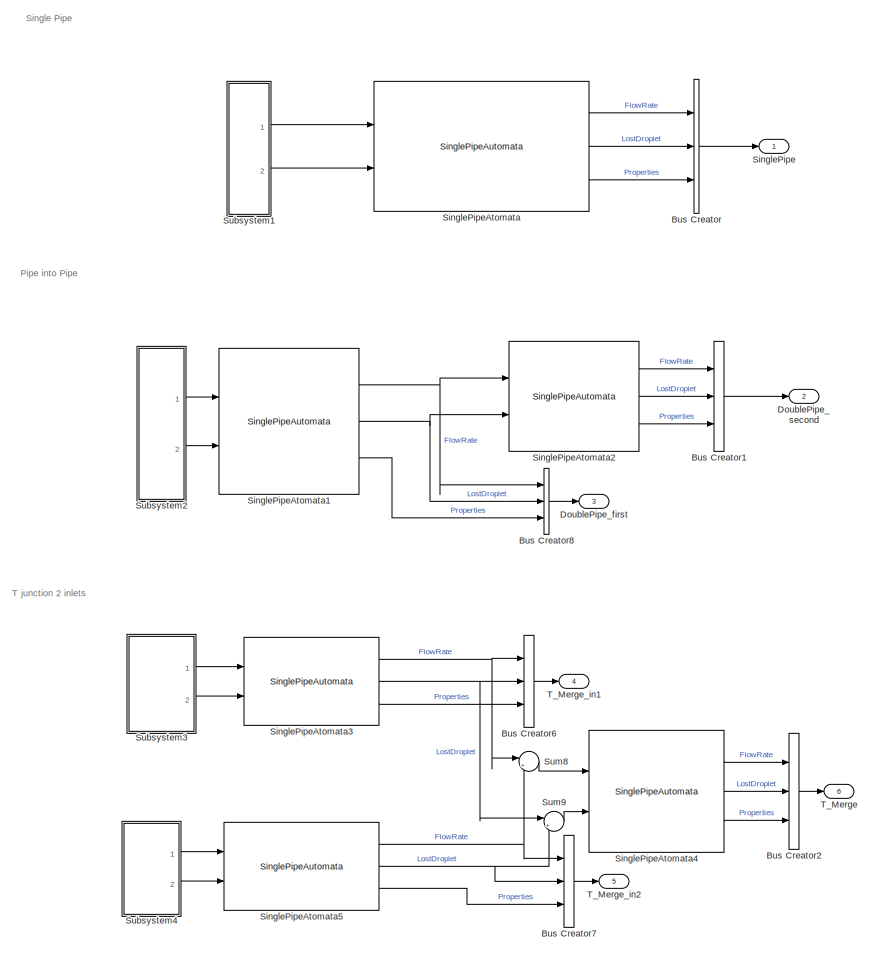
[diagram: root canvas - part 1/3, top left region]
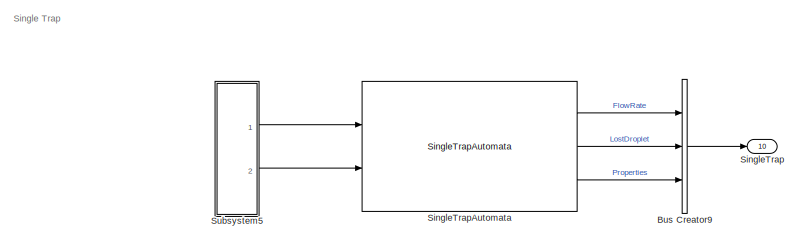
[diagram: root canvas - part 2/3, top right region]
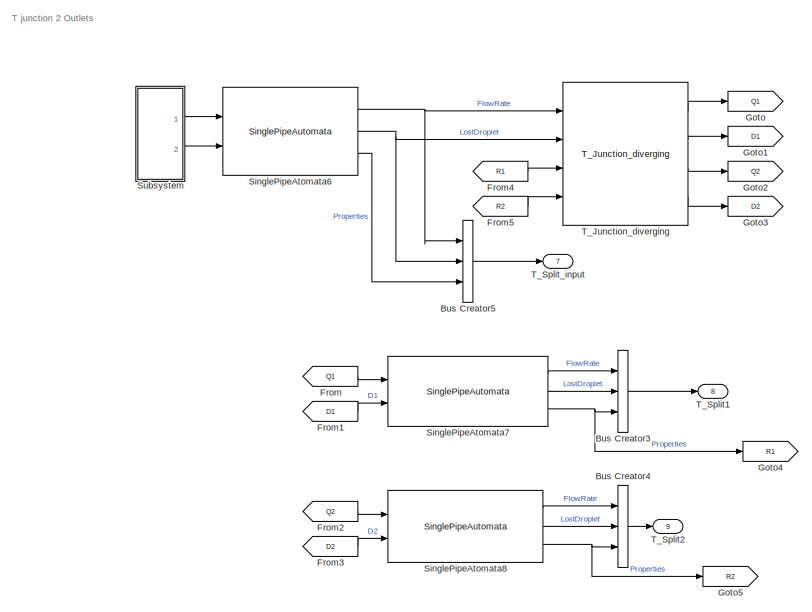
[diagram: root canvas - part 3/3, bottom left region]
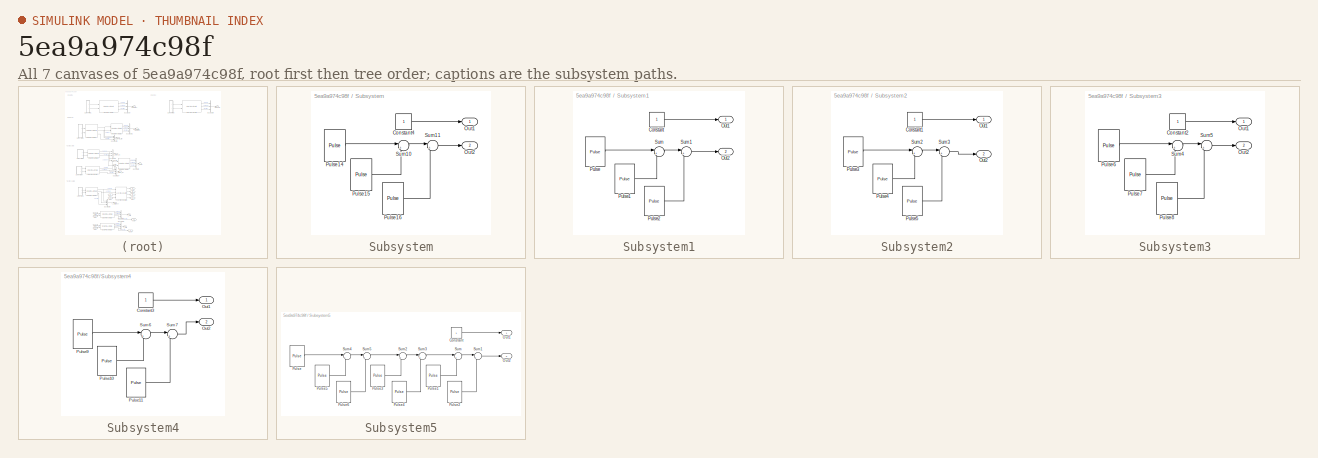
[diagram: thumbnail index - all 7 canvases of the model, root first then tree order]
MODEL slx_5ea9a974c98f
KIND model
CONFIG AbsTol = auto
CONFIG EnableMultiTasking = off
CONFIG FixedStep = 0.01
CONFIG MaxStep = auto
CONFIG MinStep = auto
CONFIG RelTol = 1e-3
CONFIG SampleTimeConstraint = Unconstrained
CONFIG Solver = FixedStepAuto
CONFIG SolverName = FixedStepAuto
CONFIG StartTime = 0.0
CONFIG StopTime = 200
BLOCK [BusCreator] Bus Creator
  DisplayOption = bar
  InheritFromInputs = on
  Inputs = 3
  Ports = [3, 1]
BLOCK [BusCreator] Bus Creator1
  DisplayOption = bar
  InheritFromInputs = on
  Inputs = 3
  Ports = [3, 1]
BLOCK [BusCreator] Bus Creator2
  DisplayOption = bar
  InheritFromInputs = on
  Inputs = 3
  Ports = [3, 1]
BLOCK [BusCreator] Bus Creator3
  DisplayOption = bar
  InheritFromInputs = on
  Inputs = 3
  Ports = [3, 1]
BLOCK [BusCreator] Bus Creator4
  DisplayOption = bar
  InheritFromInputs = on
  Inputs = 3
  Ports = [3, 1]
BLOCK [BusCreator] Bus Creator5
  DisplayOption = bar
  InheritFromInputs = on
  Inputs = 3
  Ports = [3, 1]
BLOCK [BusCreator] Bus Creator6
  DisplayOption = bar
  InheritFromInputs = on
  Inputs = 3
  Ports = [3, 1]
BLOCK [BusCreator] Bus Creator7
  DisplayOption = bar
  InheritFromInputs = on
  Inputs = 3
  Ports = [3, 1]
BLOCK [BusCreator] Bus Creator8
  DisplayOption = bar
  InheritFromInputs = on
  Inputs = 3
  Ports = [3, 1]
BLOCK [BusCreator] Bus Creator9
  DisplayOption = bar
  InheritFromInputs = on
  Inputs = 3
  Ports = [3, 1]
BLOCK [Outport] DoublePipe_first
  IconDisplay = Port number
  Port = 3
BLOCK [Outport] DoublePipe_second
  IconDisplay = Port number
  Port = 2
BLOCK [From] From
  GotoTag = Q1
BLOCK [From] From1
  GotoTag = D1
BLOCK [From] From2
  GotoTag = Q2
BLOCK [From] From3
  GotoTag = D2
BLOCK [From] From4
  GotoTag = R1
BLOCK [From] From5
  GotoTag = R2
BLOCK [Goto] Goto
  GotoTag = Q1
BLOCK [Goto] Goto1
  GotoTag = D1
BLOCK [Goto] Goto2
  GotoTag = Q2
BLOCK [Goto] Goto3
  GotoTag = D2
BLOCK [Goto] Goto4
  GotoTag = R1
BLOCK [Goto] Goto5
  GotoTag = R2
BLOCK [Outport] SinglePipe
  IconDisplay = Port number
BLOCK [Reference] SinglePipeAtomata  REF=SinglePipe_lib/SinglePipeAutomata
  Ports = [2, 3]
  SourceBlock = SinglePipe_lib/SinglePipeAutomata
BLOCK [Reference] SinglePipeAtomata1  REF=SinglePipe_lib/SinglePipeAutomata
  Ports = [2, 3]
  SourceBlock = SinglePipe_lib/SinglePipeAutomata
BLOCK [Reference] SinglePipeAtomata2  REF=SinglePipe_lib/SinglePipeAutomata
  Ports = [2, 3]
  SourceBlock = SinglePipe_lib/SinglePipeAutomata
BLOCK [Reference] SinglePipeAtomata3  REF=SinglePipe_lib/SinglePipeAutomata
  Ports = [2, 3]
  SourceBlock = SinglePipe_lib/SinglePipeAutomata
BLOCK [Reference] SinglePipeAtomata4  REF=SinglePipe_lib/SinglePipeAutomata
  Ports = [2, 3]
  SourceBlock = SinglePipe_lib/SinglePipeAutomata
BLOCK [Reference] SinglePipeAtomata5  REF=SinglePipe_lib/SinglePipeAutomata
  Ports = [2, 3]
  SourceBlock = SinglePipe_lib/SinglePipeAutomata
BLOCK [Reference] SinglePipeAtomata6  REF=SinglePipe_lib/SinglePipeAutomata
  Ports = [2, 3]
  SourceBlock = SinglePipe_lib/SinglePipeAutomata
BLOCK [Reference] SinglePipeAtomata7  REF=SinglePipe_lib/SinglePipeAutomata
  Ports = [2, 3]
  SourceBlock = SinglePipe_lib/SinglePipeAutomata
BLOCK [Reference] SinglePipeAtomata8  REF=SinglePipe_lib/SinglePipeAutomata
  Ports = [2, 3]
  SourceBlock = SinglePipe_lib/SinglePipeAutomata
BLOCK [Outport] SingleTrap
  IconDisplay = Port number
  Port = 10
BLOCK [Reference] SingleTrapAutomata  REF=Trap_lib/SingleTrapAutomata
  Ports = [2, 3]
  SourceBlock = Trap_lib/SingleTrapAutomata
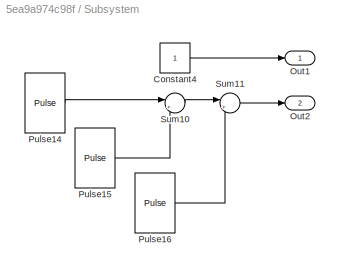
BLOCK [SubSystem] Subsystem
  Ports = [0, 2]
  RequestExecContextInheritance = off
BLOCK [Constant] Subsystem/Constant4
BLOCK [Outport] Subsystem/Out1
  IconDisplay = Port number
BLOCK [Outport] Subsystem/Out2
  IconDisplay = Port number
  Port = 2
BLOCK [Reference] Subsystem/Pulse14  REF=SinglePipe_lib/Pulse
  Ports = [0, 1]
  SourceBlock = SinglePipe_lib/Pulse
BLOCK [Reference] Subsystem/Pulse15  REF=SinglePipe_lib/Pulse
  Ports = [0, 1]
  SourceBlock = SinglePipe_lib/Pulse
BLOCK [Reference] Subsystem/Pulse16  REF=SinglePipe_lib/Pulse
  Ports = [0, 1]
  SourceBlock = SinglePipe_lib/Pulse
BLOCK [Sum] Subsystem/Sum10
  IconShape = round
  InputSameDT = off
  Inputs = |++
  OutDataTypeStr = Inherit: Inherit via internal rule
  Ports = [2, 1]
  SaturateOnIntegerOverflow = off
BLOCK [Sum] Subsystem/Sum11
  IconShape = round
  InputSameDT = off
  Inputs = |++
  OutDataTypeStr = Inherit: Inherit via internal rule
  Ports = [2, 1]
  SaturateOnIntegerOverflow = off
BLOCK [SubSystem] Subsystem1
  Ports = [0, 2]
  RequestExecContextInheritance = off
BLOCK [Constant] Subsystem1/Constant
BLOCK [Outport] Subsystem1/Out1
  IconDisplay = Port number
BLOCK [Outport] Subsystem1/Out2
  IconDisplay = Port number
  Port = 2
BLOCK [Reference] Subsystem1/Pulse  REF=SinglePipe_lib/Pulse
  Ports = [0, 1]
  SourceBlock = SinglePipe_lib/Pulse
BLOCK [Reference] Subsystem1/Pulse1  REF=SinglePipe_lib/Pulse
  Ports = [0, 1]
  SourceBlock = SinglePipe_lib/Pulse
BLOCK [Reference] Subsystem1/Pulse2  REF=SinglePipe_lib/Pulse
  Ports = [0, 1]
  SourceBlock = SinglePipe_lib/Pulse
BLOCK [Sum] Subsystem1/Sum
  IconShape = round
  InputSameDT = off
  Inputs = |++
  OutDataTypeStr = Inherit: Inherit via internal rule
  Ports = [2, 1]
  SaturateOnIntegerOverflow = off
BLOCK [Sum] Subsystem1/Sum1
  IconShape = round
  InputSameDT = off
  Inputs = |++
  OutDataTypeStr = Inherit: Inherit via internal rule
  Ports = [2, 1]
  SaturateOnIntegerOverflow = off
BLOCK [SubSystem] Subsystem2
  Ports = [0, 2]
  RequestExecContextInheritance = off
BLOCK [Constant] Subsystem2/Constant1
BLOCK [Outport] Subsystem2/Out1
  IconDisplay = Port number
BLOCK [Outport] Subsystem2/Out2
  IconDisplay = Port number
  Port = 2
BLOCK [Reference] Subsystem2/Pulse3  REF=SinglePipe_lib/Pulse
  Ports = [0, 1]
  SourceBlock = SinglePipe_lib/Pulse
BLOCK [Reference] Subsystem2/Pulse4  REF=SinglePipe_lib/Pulse
  Ports = [0, 1]
  SourceBlock = SinglePipe_lib/Pulse
BLOCK [Reference] Subsystem2/Pulse5  REF=SinglePipe_lib/Pulse
  Ports = [0, 1]
  SourceBlock = SinglePipe_lib/Pulse
BLOCK [Sum] Subsystem2/Sum2
  IconShape = round
  InputSameDT = off
  Inputs = |++
  OutDataTypeStr = Inherit: Inherit via internal rule
  Ports = [2, 1]
  SaturateOnIntegerOverflow = off
BLOCK [Sum] Subsystem2/Sum3
  IconShape = round
  InputSameDT = off
  Inputs = |++
  OutDataTypeStr = Inherit: Inherit via internal rule
  Ports = [2, 1]
  SaturateOnIntegerOverflow = off
BLOCK [SubSystem] Subsystem3
  Ports = [0, 2]
  RequestExecContextInheritance = off
BLOCK [Constant] Subsystem3/Constant2
BLOCK [Outport] Subsystem3/Out1
  IconDisplay = Port number
BLOCK [Outport] Subsystem3/Out2
  IconDisplay = Port number
  Port = 2
BLOCK [Reference] Subsystem3/Pulse6  REF=SinglePipe_lib/Pulse
  Ports = [0, 1]
  SourceBlock = SinglePipe_lib/Pulse
BLOCK [Reference] Subsystem3/Pulse7  REF=SinglePipe_lib/Pulse
  Ports = [0, 1]
  SourceBlock = SinglePipe_lib/Pulse
BLOCK [Reference] Subsystem3/Pulse8  REF=SinglePipe_lib/Pulse
  Ports = [0, 1]
  SourceBlock = SinglePipe_lib/Pulse
BLOCK [Sum] Subsystem3/Sum4
  IconShape = round
  InputSameDT = off
  Inputs = |++
  OutDataTypeStr = Inherit: Inherit via internal rule
  Ports = [2, 1]
  SaturateOnIntegerOverflow = off
BLOCK [Sum] Subsystem3/Sum5
  IconShape = round
  InputSameDT = off
  Inputs = |++
  OutDataTypeStr = Inherit: Inherit via internal rule
  Ports = [2, 1]
  SaturateOnIntegerOverflow = off
BLOCK [SubSystem] Subsystem4
  Ports = [0, 2]
  RequestExecContextInheritance = off
BLOCK [Constant] Subsystem4/Constant3
BLOCK [Outport] Subsystem4/Out1
  IconDisplay = Port number
BLOCK [Outport] Subsystem4/Out2
  IconDisplay = Port number
  Port = 2
BLOCK [Reference] Subsystem4/Pulse10  REF=SinglePipe_lib/Pulse
  Ports = [0, 1]
  SourceBlock = SinglePipe_lib/Pulse
BLOCK [Reference] Subsystem4/Pulse11  REF=SinglePipe_lib/Pulse
  Ports = [0, 1]
  SourceBlock = SinglePipe_lib/Pulse
BLOCK [Reference] Subsystem4/Pulse9  REF=SinglePipe_lib/Pulse
  Ports = [0, 1]
  SourceBlock = SinglePipe_lib/Pulse
BLOCK [Sum] Subsystem4/Sum6
  IconShape = round
  InputSameDT = off
  Inputs = |++
  OutDataTypeStr = Inherit: Inherit via internal rule
  Ports = [2, 1]
  SaturateOnIntegerOverflow = off
BLOCK [Sum] Subsystem4/Sum7
  IconShape = round
  InputSameDT = off
  Inputs = |++
  OutDataTypeStr = Inherit: Inherit via internal rule
  Ports = [2, 1]
  SaturateOnIntegerOverflow = off
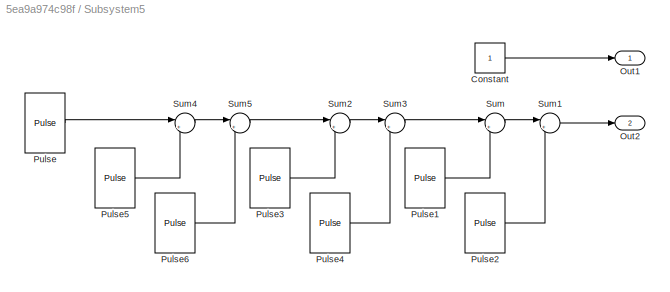
BLOCK [SubSystem] Subsystem5
  Ports = [0, 2]
  RequestExecContextInheritance = off
BLOCK [Constant] Subsystem5/Constant
BLOCK [Outport] Subsystem5/Out1
  IconDisplay = Port number
BLOCK [Outport] Subsystem5/Out2
  IconDisplay = Port number
  Port = 2
BLOCK [Reference] Subsystem5/Pulse  REF=SinglePipe_lib/Pulse
  Ports = [0, 1]
  SourceBlock = SinglePipe_lib/Pulse
BLOCK [Reference] Subsystem5/Pulse1  REF=SinglePipe_lib/Pulse
  Ports = [0, 1]
  SourceBlock = SinglePipe_lib/Pulse
BLOCK [Reference] Subsystem5/Pulse2  REF=SinglePipe_lib/Pulse
  Ports = [0, 1]
  SourceBlock = SinglePipe_lib/Pulse
BLOCK [Reference] Subsystem5/Pulse3  REF=SinglePipe_lib/Pulse
  Ports = [0, 1]
  SourceBlock = SinglePipe_lib/Pulse
BLOCK [Reference] Subsystem5/Pulse4  REF=SinglePipe_lib/Pulse
  Ports = [0, 1]
  SourceBlock = SinglePipe_lib/Pulse
BLOCK [Reference] Subsystem5/Pulse5  REF=SinglePipe_lib/Pulse
  Ports = [0, 1]
  SourceBlock = SinglePipe_lib/Pulse
BLOCK [Reference] Subsystem5/Pulse6  REF=SinglePipe_lib/Pulse
  Ports = [0, 1]
  SourceBlock = SinglePipe_lib/Pulse
BLOCK [Sum] Subsystem5/Sum
  IconShape = round
  InputSameDT = off
  Inputs = |++
  OutDataTypeStr = Inherit: Inherit via internal rule
  Ports = [2, 1]
  SaturateOnIntegerOverflow = off
BLOCK [Sum] Subsystem5/Sum1
  IconShape = round
  InputSameDT = off
  Inputs = |++
  OutDataTypeStr = Inherit: Inherit via internal rule
  Ports = [2, 1]
  SaturateOnIntegerOverflow = off
BLOCK [Sum] Subsystem5/Sum2
  IconShape = round
  InputSameDT = off
  Inputs = |++
  OutDataTypeStr = Inherit: Inherit via internal rule
  Ports = [2, 1]
  SaturateOnIntegerOverflow = off
BLOCK [Sum] Subsystem5/Sum3
  IconShape = round
  InputSameDT = off
  Inputs = |++
  OutDataTypeStr = Inherit: Inherit via internal rule
  Ports = [2, 1]
  SaturateOnIntegerOverflow = off
BLOCK [Sum] Subsystem5/Sum4
  IconShape = round
  InputSameDT = off
  Inputs = |++
  OutDataTypeStr = Inherit: Inherit via internal rule
  Ports = [2, 1]
  SaturateOnIntegerOverflow = off
BLOCK [Sum] Subsystem5/Sum5
  IconShape = round
  InputSameDT = off
  Inputs = |++
  OutDataTypeStr = Inherit: Inherit via internal rule
  Ports = [2, 1]
  SaturateOnIntegerOverflow = off
BLOCK [Sum] Sum8
  IconShape = round
  InputSameDT = off
  Inputs = |++
  OutDataTypeStr = Inherit: Inherit via internal rule
  Ports = [2, 1]
  SaturateOnIntegerOverflow = off
BLOCK [Sum] Sum9
  IconShape = round
  InputSameDT = off
  Inputs = |++
  OutDataTypeStr = Inherit: Inherit via internal rule
  Ports = [2, 1]
  SaturateOnIntegerOverflow = off
BLOCK [Reference] T_Junction_diverging  REF=Junction_Lib/T_Junction_diverging
  Ports = [4, 4]
  SourceBlock = Junction_Lib/T_Junction_diverging
  SourceType = SubSystem
BLOCK [Outport] T_Merge
  IconDisplay = Port number
  Port = 6
BLOCK [Outport] T_Merge_in1
  IconDisplay = Port number
  Port = 4
BLOCK [Outport] T_Merge_in2
  IconDisplay = Port number
  Port = 5
BLOCK [Outport] T_Split1
  IconDisplay = Port number
  Port = 8
BLOCK [Outport] T_Split2
  IconDisplay = Port number
  Port = 9
BLOCK [Outport] T_Split_input
  IconDisplay = Port number
  Port = 7
ANNOTATION (root): Pipe into Pipe
ANNOTATION (root): Single Pipe
ANNOTATION (root): Single Trap
ANNOTATION (root): T junction 2 Outlets
ANNOTATION (root): T junction 2 inlets
LINE Bus Creator1:1 -> DoublePipe_second:1
LINE Bus Creator2:1 -> T_Merge:1
LINE Bus Creator3:1 -> T_Split1:1
LINE Bus Creator4:1 -> T_Split2:1
LINE Bus Creator5:1 -> T_Split_input:1
LINE Bus Creator6:1 -> T_Merge_in1:1
LINE Bus Creator7:1 -> T_Merge_in2:1
LINE Bus Creator8:1 -> DoublePipe_first:1
LINE Bus Creator9:1 -> SingleTrap:1
LINE Bus Creator:1 -> SinglePipe:1
LINE From1:1 -> SinglePipeAtomata7:2
LINE From2:1 -> SinglePipeAtomata8:1
LINE From3:1 -> SinglePipeAtomata8:2
LINE From4:1 -> T_Junction_diverging:3
LINE From5:1 -> T_Junction_diverging:4
LINE From:1 -> SinglePipeAtomata7:1
NET SinglePipeAtomata1:1 -> Bus Creator8:1, SinglePipeAtomata2:1
NET SinglePipeAtomata1:2 -> Bus Creator8:2, SinglePipeAtomata2:2
LINE SinglePipeAtomata1:3 -> Bus Creator8:3
LINE SinglePipeAtomata2:1 -> Bus Creator1:1
LINE SinglePipeAtomata2:2 -> Bus Creator1:2
LINE SinglePipeAtomata2:3 -> Bus Creator1:3
NET SinglePipeAtomata3:1 -> Bus Creator6:1, Sum8:1
NET SinglePipeAtomata3:2 -> Bus Creator6:2, Sum9:1
LINE SinglePipeAtomata3:3 -> Bus Creator6:3
LINE SinglePipeAtomata4:1 -> Bus Creator2:1
LINE SinglePipeAtomata4:2 -> Bus Creator2:2
LINE SinglePipeAtomata4:3 -> Bus Creator2:3
NET SinglePipeAtomata5:1 -> Bus Creator7:1, Sum8:2
NET SinglePipeAtomata5:2 -> Bus Creator7:2, Sum9:2
LINE SinglePipeAtomata5:3 -> Bus Creator7:3
NET SinglePipeAtomata6:1 -> Bus Creator5:1, T_Junction_diverging:1
NET SinglePipeAtomata6:2 -> Bus Creator5:2, T_Junction_diverging:2
LINE SinglePipeAtomata6:3 -> Bus Creator5:3
LINE SinglePipeAtomata7:1 -> Bus Creator3:1
LINE SinglePipeAtomata7:2 -> Bus Creator3:2
NET SinglePipeAtomata7:3 -> Bus Creator3:3, Goto4:1
LINE SinglePipeAtomata8:1 -> Bus Creator4:1
LINE SinglePipeAtomata8:2 -> Bus Creator4:2
NET SinglePipeAtomata8:3 -> Bus Creator4:3, Goto5:1
LINE SinglePipeAtomata:1 -> Bus Creator:1
LINE SinglePipeAtomata:2 -> Bus Creator:2
LINE SinglePipeAtomata:3 -> Bus Creator:3
LINE SingleTrapAutomata:1 -> Bus Creator9:1
LINE SingleTrapAutomata:2 -> Bus Creator9:2
LINE SingleTrapAutomata:3 -> Bus Creator9:3
LINE Subsystem/Constant4:1 -> Subsystem/Out1:1
LINE Subsystem/Pulse14:1 -> Subsystem/Sum10:1
LINE Subsystem/Pulse15:1 -> Subsystem/Sum10:2
LINE Subsystem/Pulse16:1 -> Subsystem/Sum11:2
LINE Subsystem/Sum10:1 -> Subsystem/Sum11:1
LINE Subsystem/Sum11:1 -> Subsystem/Out2:1
LINE Subsystem1/Constant:1 -> Subsystem1/Out1:1
LINE Subsystem1/Pulse1:1 -> Subsystem1/Sum:2
LINE Subsystem1/Pulse2:1 -> Subsystem1/Sum1:2
LINE Subsystem1/Pulse:1 -> Subsystem1/Sum:1
LINE Subsystem1/Sum1:1 -> Subsystem1/Out2:1
LINE Subsystem1/Sum:1 -> Subsystem1/Sum1:1
LINE Subsystem1:1 -> SinglePipeAtomata:1
LINE Subsystem1:2 -> SinglePipeAtomata:2
LINE Subsystem2/Constant1:1 -> Subsystem2/Out1:1
LINE Subsystem2/Pulse3:1 -> Subsystem2/Sum2:1
LINE Subsystem2/Pulse4:1 -> Subsystem2/Sum2:2
LINE Subsystem2/Pulse5:1 -> Subsystem2/Sum3:2
LINE Subsystem2/Sum2:1 -> Subsystem2/Sum3:1
LINE Subsystem2/Sum3:1 -> Subsystem2/Out2:1
LINE Subsystem2:1 -> SinglePipeAtomata1:1
LINE Subsystem2:2 -> SinglePipeAtomata1:2
LINE Subsystem3/Constant2:1 -> Subsystem3/Out1:1
LINE Subsystem3/Pulse6:1 -> Subsystem3/Sum4:1
LINE Subsystem3/Pulse7:1 -> Subsystem3/Sum4:2
LINE Subsystem3/Pulse8:1 -> Subsystem3/Sum5:2
LINE Subsystem3/Sum4:1 -> Subsystem3/Sum5:1
LINE Subsystem3/Sum5:1 -> Subsystem3/Out2:1
LINE Subsystem3:1 -> SinglePipeAtomata3:1
LINE Subsystem3:2 -> SinglePipeAtomata3:2
LINE Subsystem4/Constant3:1 -> Subsystem4/Out1:1
LINE Subsystem4/Pulse10:1 -> Subsystem4/Sum6:2
LINE Subsystem4/Pulse11:1 -> Subsystem4/Sum7:2
LINE Subsystem4/Pulse9:1 -> Subsystem4/Sum6:1
LINE Subsystem4/Sum6:1 -> Subsystem4/Sum7:1
LINE Subsystem4/Sum7:1 -> Subsystem4/Out2:1
LINE Subsystem4:1 -> SinglePipeAtomata5:1
LINE Subsystem4:2 -> SinglePipeAtomata5:2
LINE Subsystem5/Constant:1 -> Subsystem5/Out1:1
LINE Subsystem5/Pulse1:1 -> Subsystem5/Sum:2
LINE Subsystem5/Pulse2:1 -> Subsystem5/Sum1:2
LINE Subsystem5/Pulse3:1 -> Subsystem5/Sum2:2
LINE Subsystem5/Pulse4:1 -> Subsystem5/Sum3:2
LINE Subsystem5/Pulse5:1 -> Subsystem5/Sum4:2
LINE Subsystem5/Pulse6:1 -> Subsystem5/Sum5:2
LINE Subsystem5/Pulse:1 -> Subsystem5/Sum4:1
LINE Subsystem5/Sum1:1 -> Subsystem5/Out2:1
LINE Subsystem5/Sum2:1 -> Subsystem5/Sum3:1
LINE Subsystem5/Sum3:1 -> Subsystem5/Sum:1
LINE Subsystem5/Sum4:1 -> Subsystem5/Sum5:1
LINE Subsystem5/Sum5:1 -> Subsystem5/Sum2:1
LINE Subsystem5/Sum:1 -> Subsystem5/Sum1:1
LINE Subsystem5:1 -> SingleTrapAutomata:1
LINE Subsystem5:2 -> SingleTrapAutomata:2
LINE Subsystem:1 -> SinglePipeAtomata6:1
LINE Subsystem:2 -> SinglePipeAtomata6:2
LINE Sum8:1 -> SinglePipeAtomata4:1
LINE Sum9:1 -> SinglePipeAtomata4:2
LINE T_Junction_diverging:1 -> Goto:1
LINE T_Junction_diverging:2 -> Goto1:1
LINE T_Junction_diverging:3 -> Goto2:1
LINE T_Junction_diverging:4 -> Goto3:1
note: NET lines group one-source signal fan-out (src -> all destinations, sorted); 1:1 wires keep LINE
